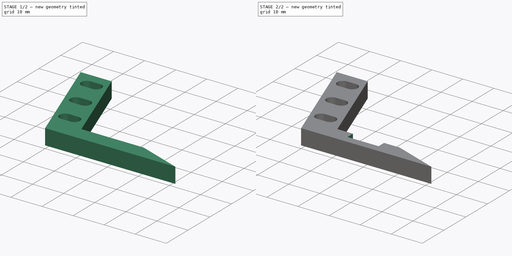
[diagram: build sequence overview — one tinted view per stage of 2, left to right]
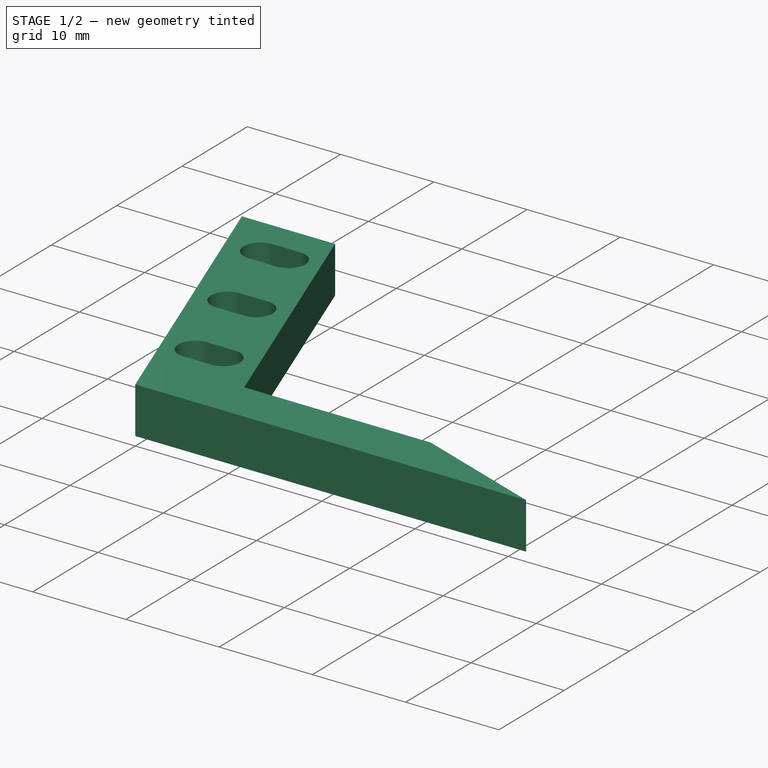
[diagram: stage 1 of 2 — iso view after this stage's code; geometry added in this stage tinted green]
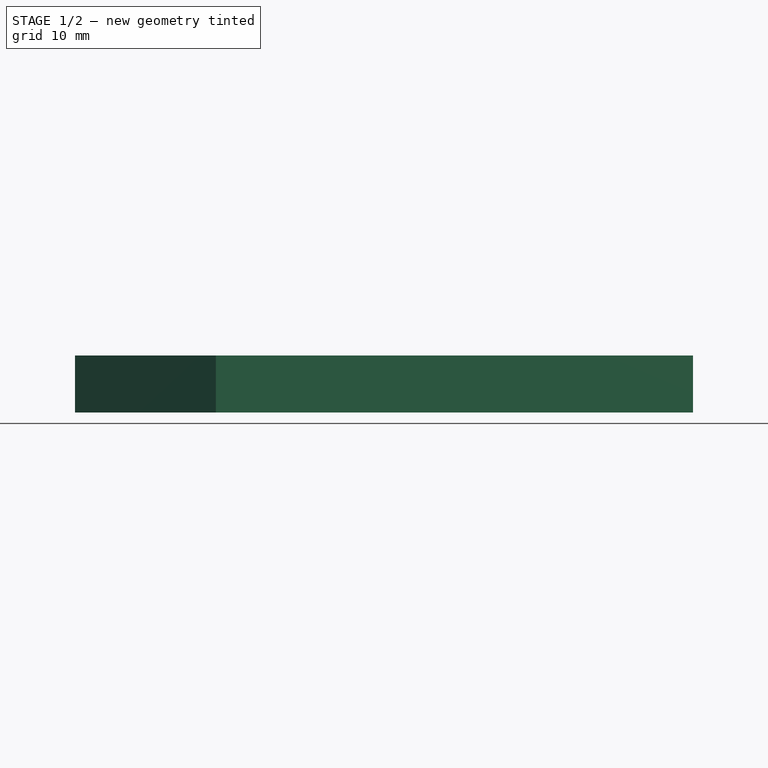
[diagram: stage 1 of 2 — front view after this stage's code; geometry added in this stage tinted green]
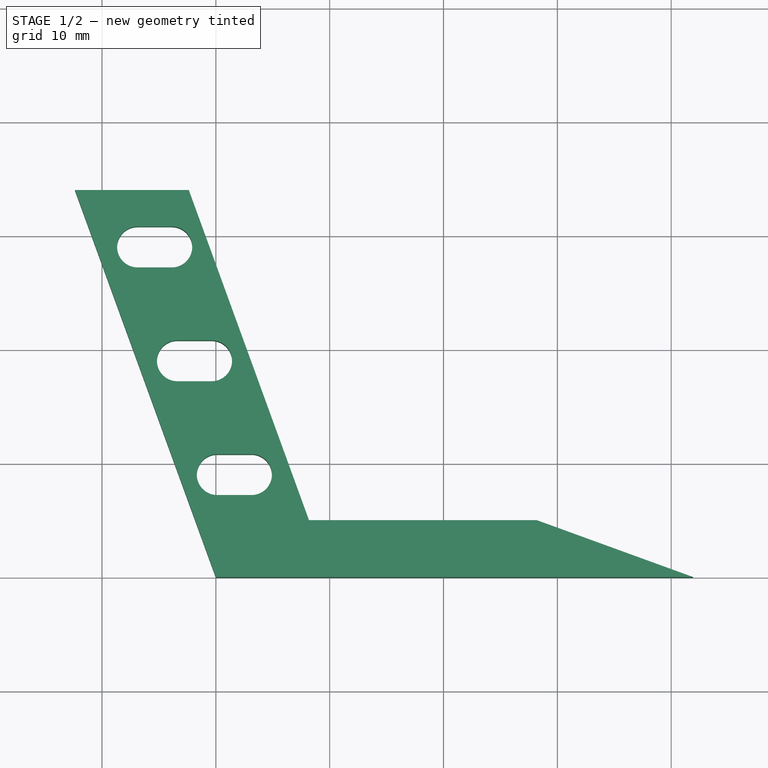
[diagram: stage 1 of 2 — top view after this stage's code; geometry added in this stage tinted green]
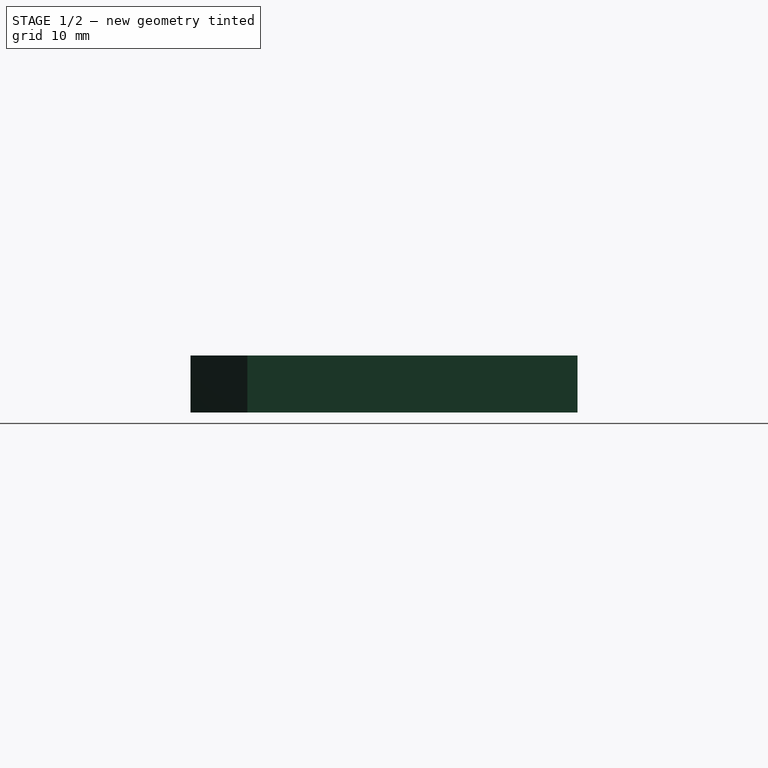
[diagram: stage 1 of 2 — right view after this stage's code; geometry added in this stage tinted green]
FCSTD DOCUMENT  (FreeCAD 0.21R33771 (Git))
Label: front-scoop-side
License: All rights reserved
LicenseURL: https://en.wikipedia.org/wiki/All_rights_reserved
objects: Sketcher::SketchObject×3, PartDesign::Pocket×2, PartDesign::Pad×1, PartDesign::Body×1
note: 10 computed .brp shape members not serialized (recipe doc carries the construction recipe); baked Part::Feature solids carry a one-line shape summary decoded from their .brp

FEATURE [Sketcher::SketchObject] Sketch
  FullyConstrained = true
  MapMode = 5
  Support = -> [XY_Plane]
  sketch-geometry (6):
    g0: LineSegment StartX=-12.375 StartY=34 StartZ=0 EndX=0 EndY=0 EndZ=0
    g1: LineSegment StartX=0 StartY=0 StartZ=0 EndX=41.9175 EndY=0 EndZ=0
    g2: LineSegment StartX=41.9175 StartY=0 StartZ=0 EndX=28.1801 EndY=5 EndZ=0
    g3: LineSegment StartX=28.1801 StartY=5 StartZ=0 EndX=8.18015 EndY=5 EndZ=0
    g4: LineSegment StartX=8.18015 StartY=5 StartZ=0 EndX=-2.37499 EndY=34 EndZ=0
    g5: LineSegment StartX=-2.37499 StartY=34 StartZ=0 EndX=-12.375 EndY=34 EndZ=0
  constraints (17):
    c: Coincident(g0,g1)
    c: PointOnObject(g1,g-1)
    c: Coincident(g1,g2)
    c: Coincident(g2,g3)
    c: Horizontal(g3)
    c: Coincident(g3,g4)
    c: Coincident(g4,g5)
    c: Horizontal(g5)
    c: Angle(g2,g1) = 0.349066
    c: DistanceY(g-1,g2) = 5
    c: Coincident(g-1,g0)
    c: Coincident(g0,g5)
    c: Angle(g1,g0) = 1.91986
    c: Parallel(g4,g0)
    c: DistanceX(g5,g5) = 10
    c: DistanceX(g3,g3) = 20
    c: DistanceY(g0,g0) = 34
FEATURE [PartDesign::Pad] Pad
  Direction = (0,0,1)
  Length = 5
  Length2 = 10
  Profile = -> Sketch
  ReferenceAxis = -> Sketch [N_Axis]
  Type = 0
FEATURE [Sketcher::SketchObject] Sketch001
  ExternalGeometry = -> [Pad]
  FullyConstrained = true
  MapMode = 5
  Placement = pos=(0,0,5) rot=(0,0,1;0rad)
  Support = -> [Pad]
  sketch-geometry (12):
    g0: ArcOfCircle CenterX=-6.87499 CenterY=29 CenterZ=0 NormalX=0 NormalY=0 NormalZ=1 AngleXU=0 Radius=1.8 StartAngle=1.5708 EndAngle=4.71239
    g1: ArcOfCircle CenterX=-3.87499 CenterY=29 CenterZ=0 NormalX=0 NormalY=0 NormalZ=1 AngleXU=0 Radius=1.8 StartAngle=4.71239 EndAngle=7.85398
    g2: LineSegment StartX=-6.87499 StartY=27.2 StartZ=0 EndX=-3.87499 EndY=27.2 EndZ=0
    g3: LineSegment StartX=-3.87499 StartY=30.8 StartZ=0 EndX=-6.87499 EndY=30.8 EndZ=0
    g4: ArcOfCircle CenterX=-3.37499 CenterY=19 CenterZ=0 NormalX=0 NormalY=0 NormalZ=1 AngleXU=0 Radius=1.8 StartAngle=1.5708 EndAngle=4.71239
    g5: ArcOfCircle CenterX=-0.374988 CenterY=19 CenterZ=0 NormalX=0 NormalY=0 NormalZ=1 AngleXU=0 Radius=1.8 StartAngle=4.71239 EndAngle=7.85398
    g6: LineSegment StartX=-3.37499 StartY=17.2 StartZ=0 EndX=-0.374988 EndY=17.2 EndZ=0
    g7: LineSegment StartX=-0.374988 StartY=20.8 StartZ=0 EndX=-3.37499 EndY=20.8 EndZ=0
    g8: ArcOfCircle CenterX=0.125012 CenterY=9 CenterZ=0 NormalX=0 NormalY=0 NormalZ=1 AngleXU=0 Radius=1.8 StartAngle=1.5708 EndAngle=4.71239
    g9: ArcOfCircle CenterX=3.12501 CenterY=9 CenterZ=0 NormalX=0 NormalY=0 NormalZ=1 AngleXU=0 Radius=1.8 StartAngle=4.71239 EndAngle=7.85398
    g10: LineSegment StartX=0.125012 StartY=7.2 StartZ=0 EndX=3.12501 EndY=7.2 EndZ=0
    g11: LineSegment StartX=3.12501 StartY=10.8 StartZ=0 EndX=0.125012 EndY=10.8 EndZ=0
  constraints (30):
    c: Tangent(g0,g2) = -1.5708
    c: Tangent(g2,g1) = -1.5708
    c: Tangent(g1,g3) = -1.5708
    c: Tangent(g3,g0) = -1.5708
    c: Equal(g0,g1)
    c: Tangent(g4,g6) = -1.5708
    c: Tangent(g6,g5) = -1.5708
    c: Tangent(g5,g7) = -1.5708
    c: Tangent(g7,g4) = -1.5708
    c: Equal(g4,g5)
    c: Tangent(g8,g10) = -1.5708
    c: Tangent(g10,g9) = -1.5708
    c: Tangent(g9,g11) = -1.5708
    c: Tangent(g11,g8) = -1.5708
    c: Equal(g8,g9)
    c: DistanceY(g1,g1) = 1.8
    c: DistanceY(g5,g5) = 1.8
    c: DistanceY(g9,g9) = 1.8
    c: DistanceX(g3,g3) = 3
    c: DistanceX(g7,g7) = 3
    c: DistanceX(g11,g11) = 3
    c: DistanceY(g0,g-4) = 5
    c: DistanceY(g1,g-3) = 5
    c: DistanceY(g4,g0) = 10
    c: DistanceY(g5,g1) = 10
    c: DistanceY(g8,g4) = 10
    c: DistanceY(g9,g5) = 10
    c: DistanceX(g-4,g0) = 5.5
    c: DistanceX(g0,g4) = 3.5
    c: DistanceX(g4,g8) = 3.5
FEATURE [PartDesign::Pocket] Pocket
  BaseFeature = -> Pad
  Direction = (0,0,-1)
  Length = 5
  Length2 = 5
  Profile = -> Sketch001
  ReferenceAxis = -> Sketch001 [N_Axis]
  Type = 1
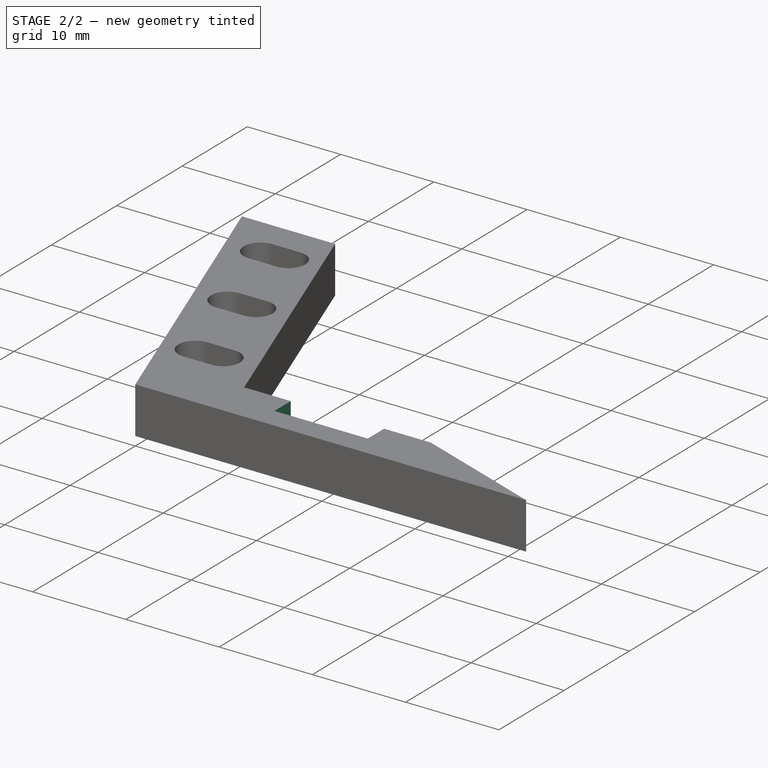
[diagram: stage 2 of 2 — iso view after this stage's code; geometry added in this stage tinted green]
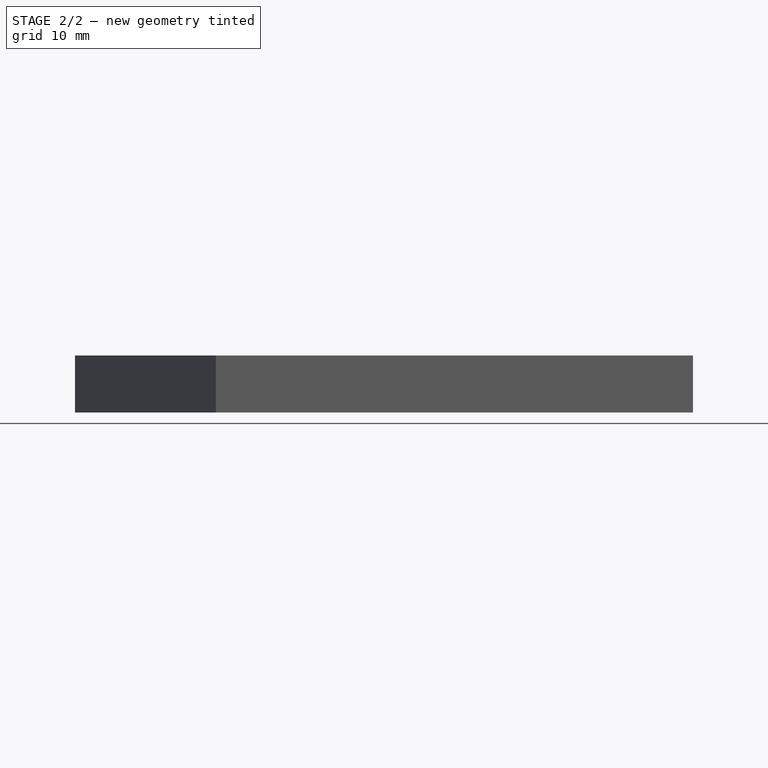
[diagram: stage 2 of 2 — front view after this stage's code; geometry added in this stage tinted green]
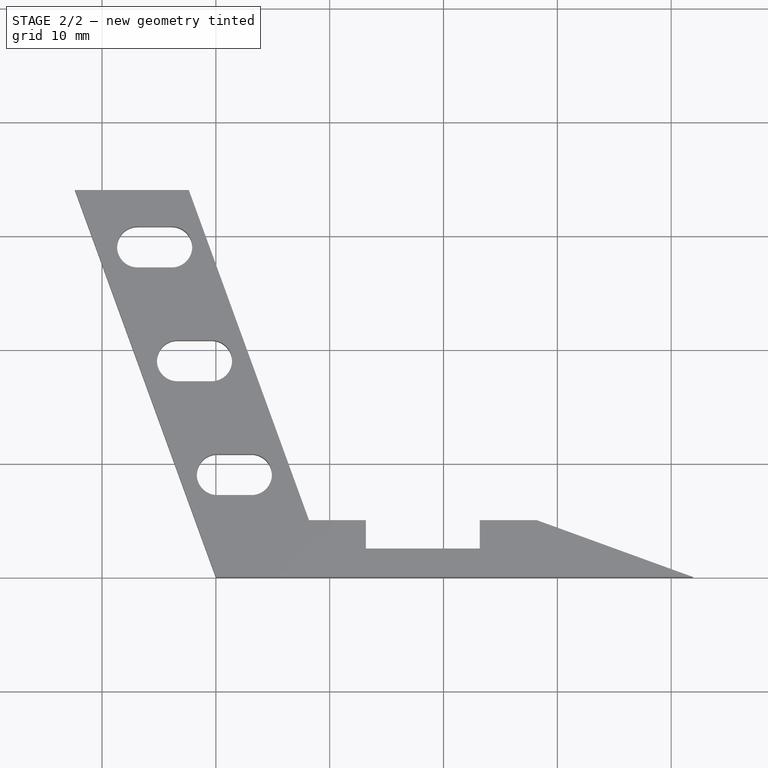
[diagram: stage 2 of 2 — top view after this stage's code; geometry added in this stage tinted green]
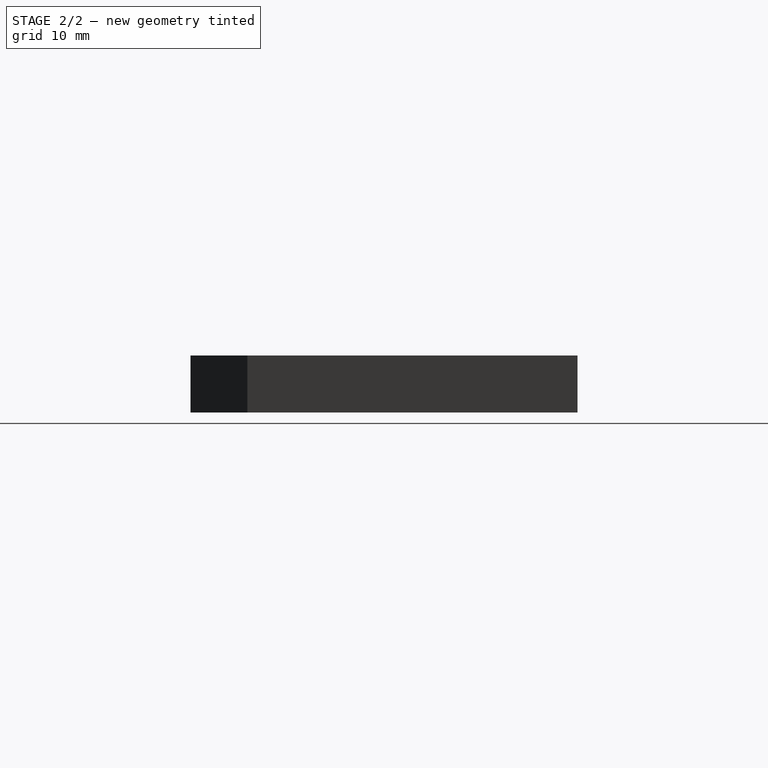
[diagram: stage 2 of 2 — right view after this stage's code; geometry added in this stage tinted green]
FEATURE [Sketcher::SketchObject] Sketch002
  ExternalGeometry = -> [Pocket]
  FullyConstrained = true
  MapMode = 5
  Placement = pos=(0,5,0) rot=(0,0.707107,0.707107;3.14159rad)
  Support = -> [Pocket]
  sketch-geometry (4):
    g0: LineSegment StartX=-23.1801 StartY=5 StartZ=0 EndX=-13.1801 EndY=5 EndZ=0
    g1: LineSegment StartX=-13.1801 StartY=5 StartZ=0 EndX=-13.1801 EndY=0 EndZ=0
    g2: LineSegment StartX=-13.1801 StartY=0 StartZ=0 EndX=-23.1801 EndY=0 EndZ=0
    g3: LineSegment StartX=-23.1801 StartY=0 StartZ=0 EndX=-23.1801 EndY=5 EndZ=0
  constraints (12):
    c: Coincident(g0,g1)
    c: Coincident(g1,g2)
    c: Coincident(g2,g3)
    c: Coincident(g3,g0)
    c: Horizontal(g0)
    c: Horizontal(g2)
    c: Vertical(g1)
    c: Vertical(g3)
    c: PointOnObject(g0,g-3)
    c: PointOnObject(g1,g-4)
    c: DistanceX(g-3,g0) = 5
    c: DistanceX(g0,g-3) = 5
FEATURE [PartDesign::Pocket] Pocket001
  BaseFeature = -> Pocket
  Direction = (0,-1,2e-16)
  Length = 2.5
  Length2 = 5
  Profile = -> Sketch002
  ReferenceAxis = -> Sketch002 [N_Axis]
  Type = 0
FEATURE [PartDesign::Body] Body
  Group = -> [Sketch,Pad,Sketch001,Pocket,Sketch002,Pocket001]
  Origin = -> Origin
  Tip = -> Pocket001
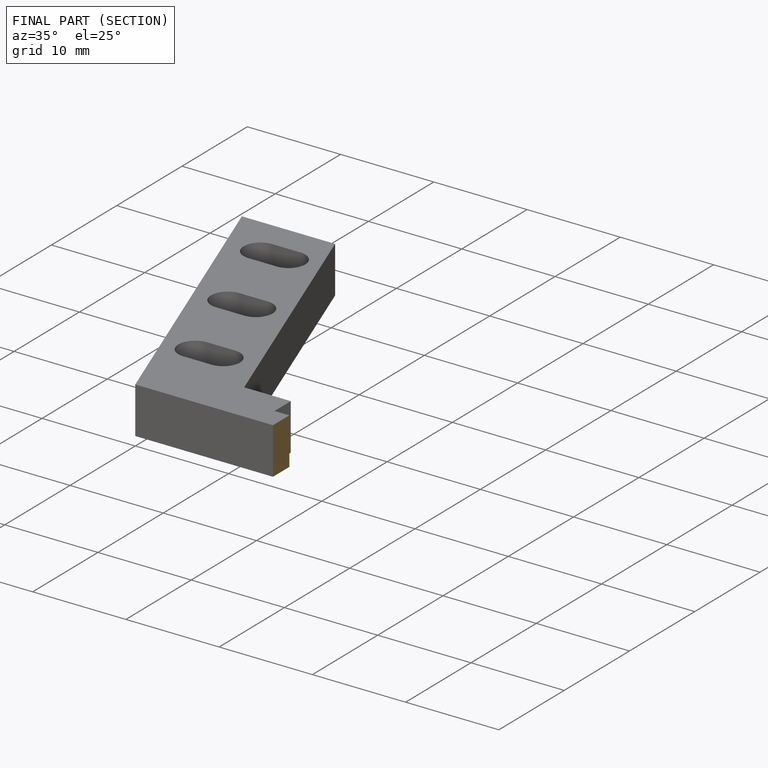
[diagram: finished part — half-section view (interior)]
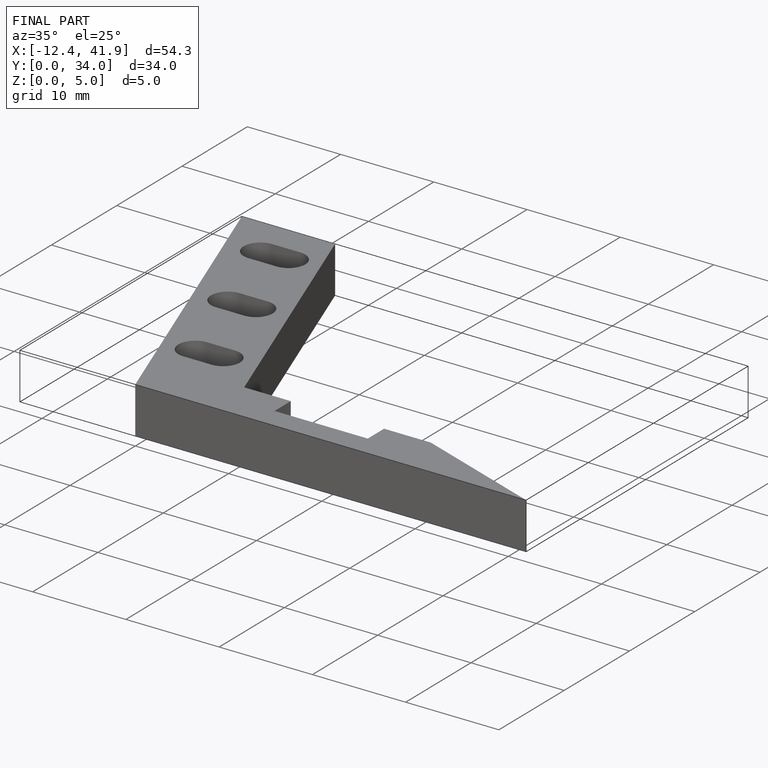
[diagram: finished part — iso view with bounding-box wireframe]
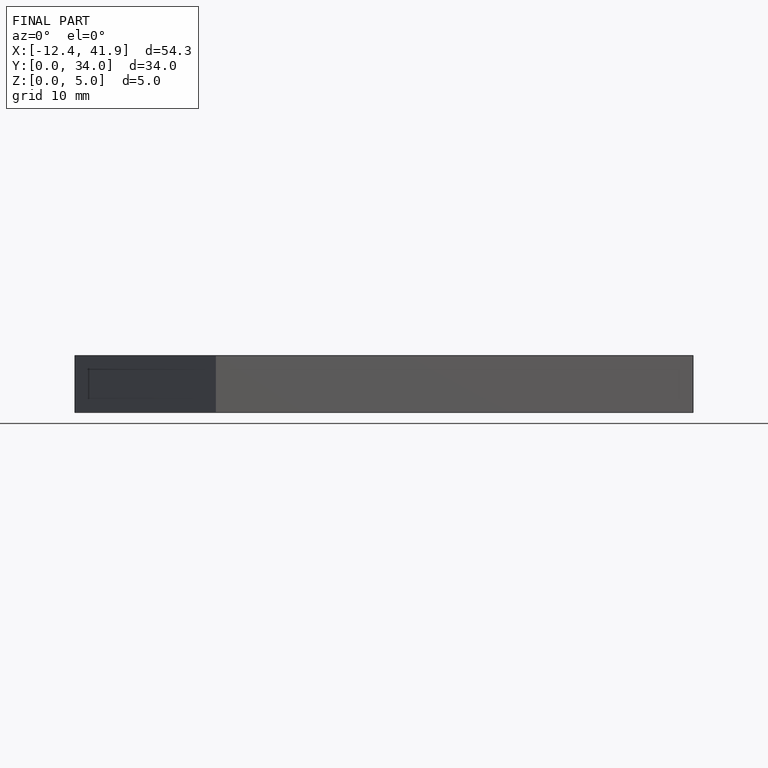
[diagram: finished part — front view with bounding-box wireframe]
